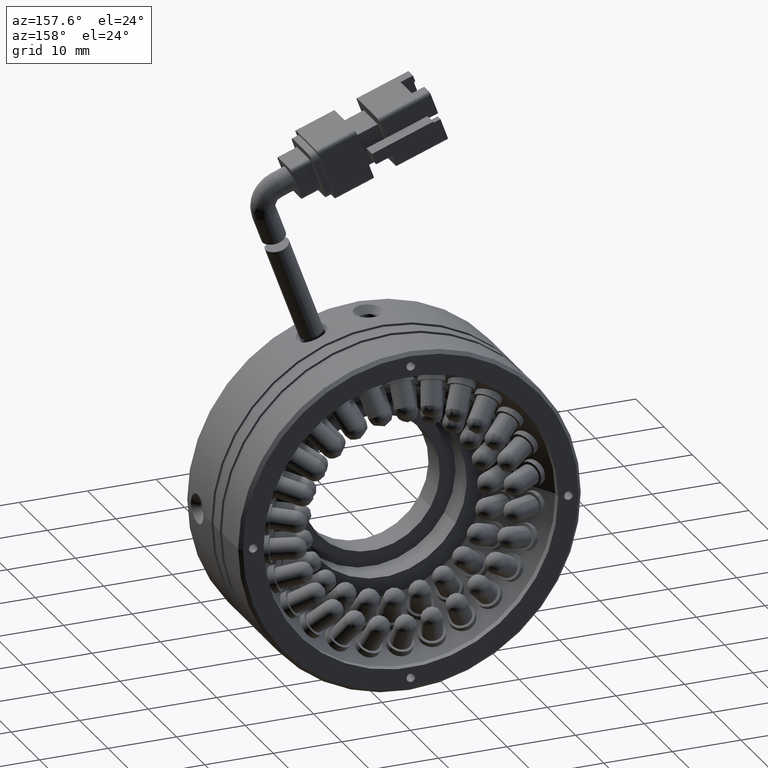
[diagram: clean part render]
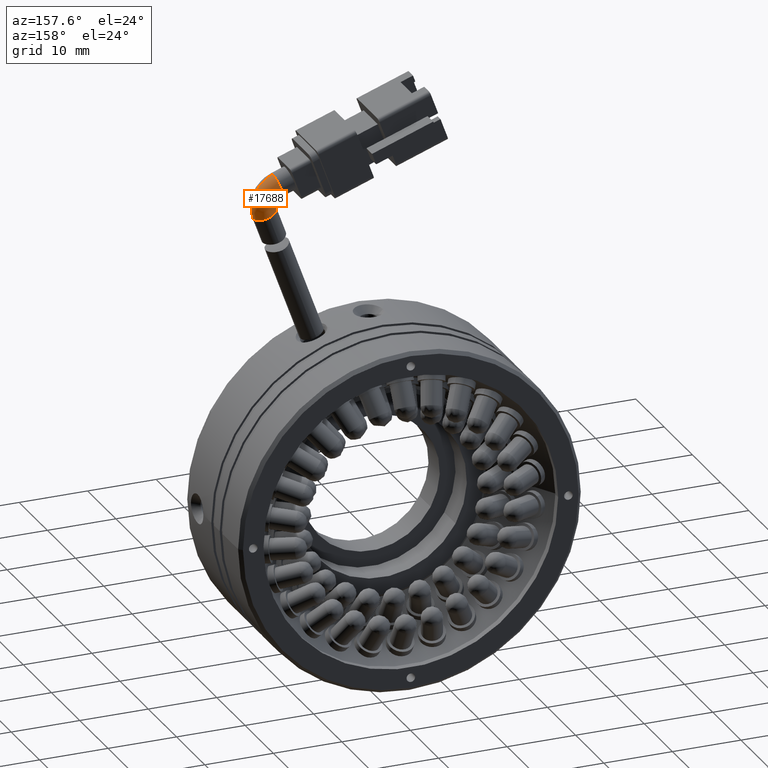
[diagram: same view with one face highlighted and labeled with its STEP entity id]
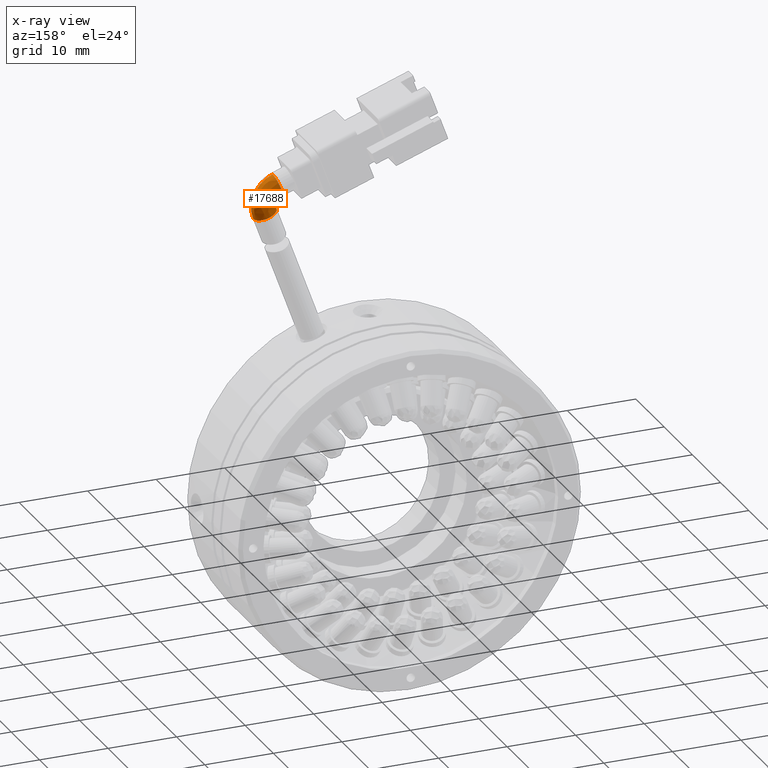
[diagram: x-ray of the same camera — body ghosted, the highlighted face saturated]
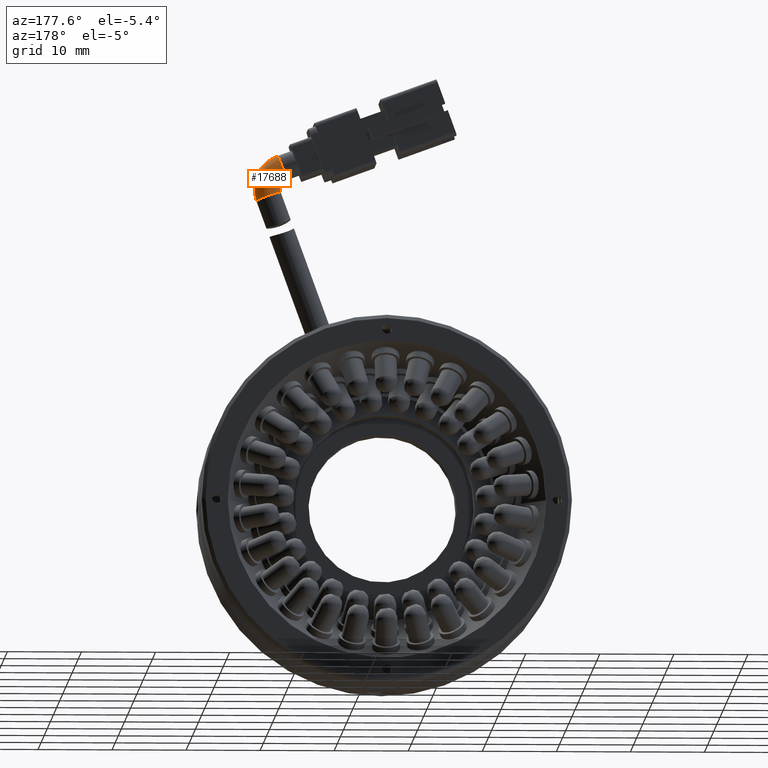
[diagram: same view with one face highlighted and labeled with its STEP entity id]
A machine part, auxiliary view. The second image highlights one B-rep face of the part: STEP entity #17688.
The next image is the same camera in x-ray: the body ghosted, the highlighted face saturated — about 0% of this face is hidden behind the body in this view.
A second angle (auxiliary view) of the same face is appended — the face is thin or edge-on in the first view.
In plain terms, the highlighted face is a freeform B-spline surface patch.
Its self-contained STEP definition (entity closure, byte-faithful):
#739 = ORIENTED_EDGE ( 'NONE', *, *, #9021, .T. ) ;
#1386 = ORIENTED_EDGE ( 'NONE', *, *, #48964, .T. ) ;
#2247 = AXIS2_PLACEMENT_3D ( 'NONE', #27598, #28812, #43626 ) ;
#2456 = ORIENTED_EDGE ( 'NONE', *, *, #50770, .T. ) ;
#4488 = DIRECTION ( 'NONE',  ( 1.050341619794772700E-016, 1.000000000000000000, -3.251469816159421900E-016 ) ) ;
#4837 = CARTESIAN_POINT ( 'NONE',  ( -79.97990792520850800, 6.627531206657412400, 42.88470318618579600 ) ) ;
#5062 = EDGE_LOOP ( 'NONE', ( #45369, #50490, #2456, #739, #1386 ) ) ;
#7364 = VERTEX_POINT ( 'NONE', #4837 ) ;
#7509 = CARTESIAN_POINT ( 'NONE',  ( -76.69098375245785300, 6.627531206657412400, 41.68763268454595300 ) ) ;
#7516 = CARTESIAN_POINT ( 'NONE',  ( -75.73931763601976300, 6.627531206657414100, 44.30231385031966300 ) ) ;
#7557 = CARTESIAN_POINT ( 'NONE',  ( -76.91524685462025000, 6.627531206657415000, 46.82410219763784900 ) ) ;
#7617 = CARTESIAN_POINT ( 'NONE',  ( -79.52992802039396700, 6.627531206657415000, 47.77576831407594000 ) ) ;
#7626 = CARTESIAN_POINT ( 'NONE',  ( -76.91524685462023600, 10.12753120665741600, 46.82410219763785600 ) ) ;
#7677 = CARTESIAN_POINT ( 'NONE',  ( -76.69098375245783900, 10.12753120665741200, 41.68763268454595300 ) ) ;
#7685 = CARTESIAN_POINT ( 'NONE',  ( -75.73931763601973400, 10.12753120665741100, 44.30231385031967100 ) ) ;
#7781 = CARTESIAN_POINT ( 'NONE',  ( -79.52992802039396700, 10.12753120665741400, 47.77576831407594700 ) ) ;
#7790 = CARTESIAN_POINT ( 'NONE',  ( -79.97990792520850800, 10.12753120665741200, 42.88470318618579600 ) ) ;
#7841 = CARTESIAN_POINT ( 'NONE',  ( -79.72946947351427100, 10.12753120665741100, 43.57277717717888500 ) ) ;
#7848 = CARTESIAN_POINT ( 'NONE',  ( -80.03892453104070600, 10.12753120665741400, 44.23640568963103400 ) ) ;
#7951 = CARTESIAN_POINT ( 'NONE',  ( -80.72699852203379600, 10.12753120665741200, 44.48684414132527100 ) ) ;
#8009 = CARTESIAN_POINT ( 'NONE',  ( -79.72946947351427100, 6.627531206657410600, 43.57277717717888500 ) ) ;
#8015 = CARTESIAN_POINT ( 'NONE',  ( -79.97990792520850800, 6.627531206657411500, 42.88470318618579600 ) ) ;
#8119 = CARTESIAN_POINT ( 'NONE',  ( -80.03892453104070600, 6.627531206657413200, 44.23640568963102700 ) ) ;
#9021 = EDGE_CURVE ( 'NONE', #28963, #36408, #21909, .T. ) ;
#9026 = CARTESIAN_POINT ( 'NONE',  ( -80.72699852203379600, 6.627531206657412400, 44.48684414132527100 ) ) ;
#12878 = CIRCLE ( 'NONE', #37680, 1.749999999999996200 ) ;
#12898 = CIRCLE ( 'NONE', #29293, 4.749999999999990200 ) ;
#13399 =( BOUNDED_SURFACE ( )  B_SPLINE_SURFACE ( 3, 3, ( 
 ( #9026, #8119, #8009, #8015 ),
 ( #7951, #7848, #7841, #7790 ),
 ( #7781, #7626, #7685, #7677 ),
 ( #7617, #7557, #7516, #7509 ) ),
 .UNSPECIFIED., .F., .F., .F. ) 
 B_SPLINE_SURFACE_WITH_KNOTS ( ( 4, 4 ),
 ( 4, 4 ),
 ( 0.0000000000000000000, 1.000000000000000000 ),
 ( 0.0000000000000000000, 1.000000000000000000 ),
 .UNSPECIFIED. ) 
 GEOMETRIC_REPRESENTATION_ITEM ( )  RATIONAL_B_SPLINE_SURFACE ( (
 ( 1.000000000000000000, 0.8047378541243640500, 0.8047378541243640500, 1.000000000000000000),
 ( 0.3333333333333332000, 0.2682459513747879100, 0.2682459513747879100, 0.3333333333333332000),
 ( 0.3333333333333332000, 0.2682459513747879100, 0.2682459513747879100, 0.3333333333333332000),
 ( 1.000000000000000000, 0.8047378541243640500, 0.8047378541243640500, 1.000000000000000000) ) ) 
 REPRESENTATION_ITEM ( '' )  SURFACE ( )  );
#16984 = DIRECTION ( 'NONE',  ( 1.050341619794772700E-016, 1.000000000000000000, -3.251469816159421900E-016 ) ) ;
#17079 = EDGE_CURVE ( 'NONE', #22056, #18551, #12878, .T. ) ;
#17688 = ADVANCED_FACE ( 'NONE', ( #33178 ), #13399, .T. ) ;
#18551 = VERTEX_POINT ( 'NONE', #24105 ) ;
#20001 = DIRECTION ( 'NONE',  ( 0.3420201433256694300, 2.696144201609998500E-016, 0.9396926207859083200 ) ) ;
#21909 = CIRCLE ( 'NONE', #2247, 1.749999999999998700 ) ;
#22056 = VERTEX_POINT ( 'NONE', #35379 ) ;
#24105 = CARTESIAN_POINT ( 'NONE',  ( -80.72699852203379600, 6.627531206657413200, 44.48684414132525700 ) ) ;
#26089 = DIRECTION ( 'NONE',  ( 0.3420201433256679900, 0.0000000000000000000, 0.9396926207859087600 ) ) ;
#26146 = DIRECTION ( 'NONE',  ( -0.9396926207859080900, -1.543954929654824700E-016, 0.3420201433256696000 ) ) ;
#26245 = CARTESIAN_POINT ( 'NONE',  ( -80.12846327121388900, 6.627531206657396400, 46.13130622770058400 ) ) ;
#26294 = CIRCLE ( 'NONE', #45314, 1.249999999999993300 ) ;
#26644 = EDGE_CURVE ( 'NONE', #18551, #7364, #26294, .T. ) ;
#27598 = CARTESIAN_POINT ( 'NONE',  ( -78.33544583883316600, 6.627531206657413200, 42.28616793536588100 ) ) ;
#27620 = CARTESIAN_POINT ( 'NONE',  ( -76.69098375245783900, 6.627531206657413200, 41.68763268454596000 ) ) ;
#28057 = CARTESIAN_POINT ( 'NONE',  ( -81.15452370119088200, 6.627531206657414100, 43.31222836534288900 ) ) ;
#28812 = DIRECTION ( 'NONE',  ( 0.3420201433256694300, 2.696144201609998500E-016, 0.9396926207859083200 ) ) ;
#28963 = VERTEX_POINT ( 'NONE', #27620 ) ;
#29293 = AXIS2_PLACEMENT_3D ( 'NONE', #28057, #4488, #32012 ) ;
#32012 = DIRECTION ( 'NONE',  ( 0.9396926207859077600, -1.826024711554537600E-016, -0.3420201433256706600 ) ) ;
#32750 = AXIS2_PLACEMENT_3D ( 'NONE', #43622, #20001, #47526 ) ;
#33178 = FACE_OUTER_BOUND ( 'NONE', #5062, .T. ) ;
#35379 = CARTESIAN_POINT ( 'NONE',  ( -79.52992802039395300, 6.627531206657415900, 47.77576831407592600 ) ) ;
#36408 = VERTEX_POINT ( 'NONE', #39588 ) ;
#37680 = AXIS2_PLACEMENT_3D ( 'NONE', #26245, #26146, #26089 ) ;
#39588 = CARTESIAN_POINT ( 'NONE',  ( -78.33544583883315200, 8.377531206657415900, 42.28616793536587400 ) ) ;
#40513 = CIRCLE ( 'NONE', #32750, 1.749999999999998700 ) ;
#40622 = CARTESIAN_POINT ( 'NONE',  ( -81.15452370119088200, 6.627531206657413200, 43.31222836534288900 ) ) ;
#43622 = CARTESIAN_POINT ( 'NONE',  ( -78.33544583883316600, 6.627531206657413200, 42.28616793536588100 ) ) ;
#43626 = DIRECTION ( 'NONE',  ( 0.9396926207859074300, 0.0000000000000000000, -0.3420201433256714900 ) ) ;
#44574 = DIRECTION ( 'NONE',  ( 0.9396926207859085400, 0.0000000000000000000, -0.3420201433256682700 ) ) ;
#45314 = AXIS2_PLACEMENT_3D ( 'NONE', #40622, #16984, #44574 ) ;
#45369 = ORIENTED_EDGE ( 'NONE', *, *, #26644, .F. ) ;
#47526 = DIRECTION ( 'NONE',  ( 0.9396926207859074300, -9.912705577010334400E-016, -0.3420201433256714900 ) ) ;
#48964 = EDGE_CURVE ( 'NONE', #36408, #7364, #40513, .T. ) ;
#50490 = ORIENTED_EDGE ( 'NONE', *, *, #17079, .F. ) ;
#50770 = EDGE_CURVE ( 'NONE', #22056, #28963, #12898, .T. ) ;